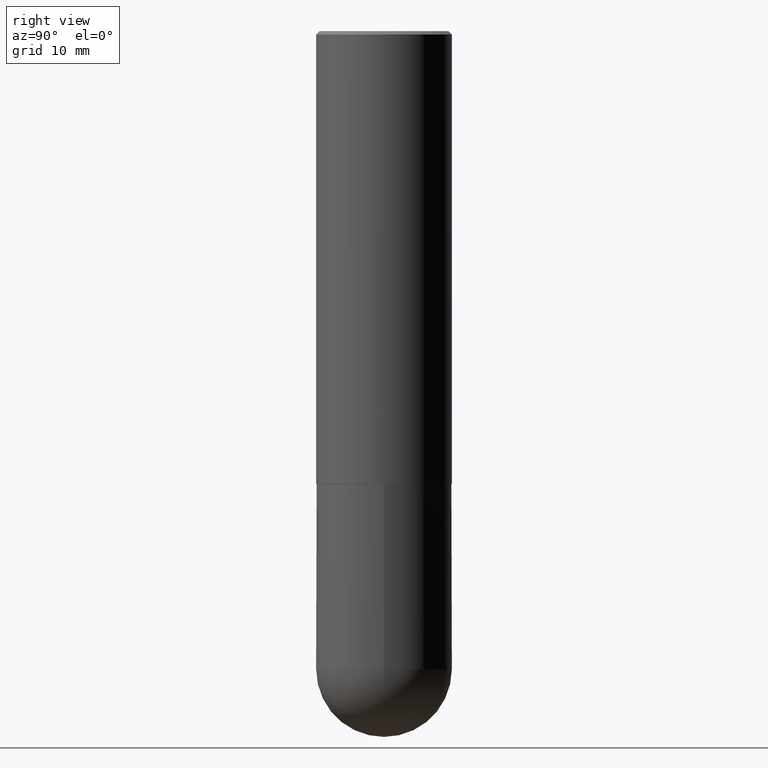
[diagram: clean part render]
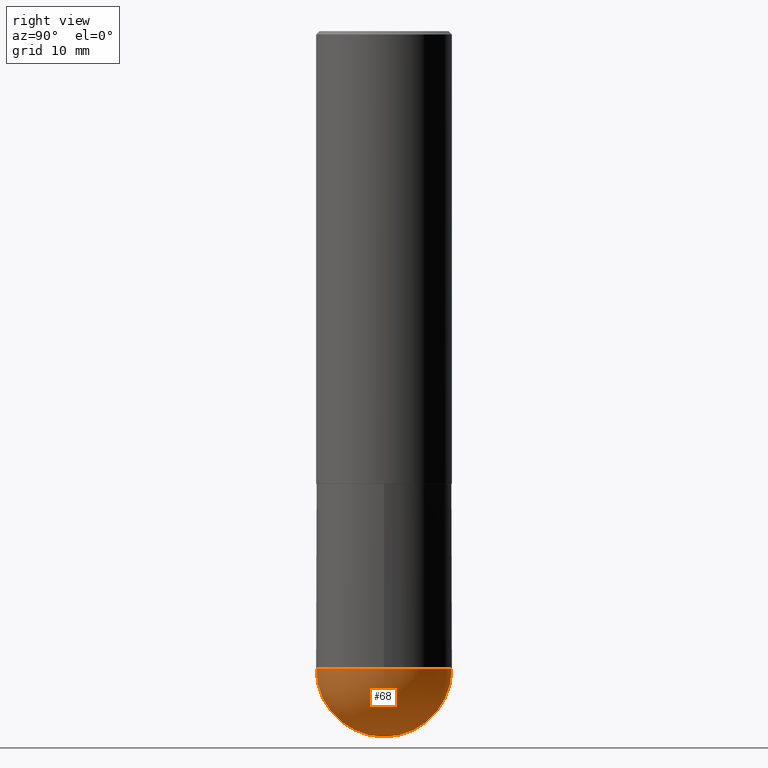
[diagram: same view with one face highlighted and labeled with its STEP entity id]
A machine part, right view. The second image highlights one B-rep face of the part: STEP entity #68.
In plain terms, the highlighted spherical surface has radius 10 mm.
Its self-contained STEP definition (entity closure, byte-faithful):
#4 = DIRECTION ( 'NONE',  ( -7.105427357600999492E-15, -1.000000000000000000, 0.000000000000000000 ) ) ;
#9 = CARTESIAN_POINT ( 'NONE',  ( 8.719071180016067419E-29, -1.339545650693076387E-14, -3.700800000000000090 ) ) ;
#21 = CARTESIAN_POINT ( 'NONE',  ( 9.050190957929953666E-29, -1.292127413879071357E-14, -3.700800000000000090 ) ) ;
#40 = CIRCLE ( 'NONE', #252, 0.3937000000000003830 ) ;
#46 = AXIS2_PLACEMENT_3D ( 'NONE', #21, #248, #246 ) ;
#67 = ORIENTED_EDGE ( 'NONE', *, *, #314, .F. ) ;
#68 = ADVANCED_FACE ( 'NONE', ( #307 ), #159, .T. ) ;
#74 = DIRECTION ( 'NONE',  ( -1.000000000000000000, 7.105427357601001070E-15, -4.926315508542082329E-29 ) ) ;
#75 = VERTEX_POINT ( 'NONE', #92 ) ;
#77 = AXIS2_PLACEMENT_3D ( 'NONE', #188, #251, #161 ) ;
#92 = CARTESIAN_POINT ( 'NONE',  ( 2.749192406205172752E-15, 0.3936999999999870048, -3.700800000000001866 ) ) ;
#112 = DIRECTION ( 'NONE',  ( 1.000000000000000000, -6.982962677686269866E-15, 0.000000000000000000 ) ) ;
#135 = DIRECTION ( 'NONE',  ( -2.445468806185136597E-29, 3.491481338843145583E-15, 1.000000000000000000 ) ) ;
#146 = AXIS2_PLACEMENT_3D ( 'NONE', #354, #135, #112 ) ;
#151 = CIRCLE ( 'NONE', #330, 0.3937000000000003830 ) ;
#155 = CARTESIAN_POINT ( 'NONE',  ( 9.698686197413653023E-29, -1.474594553779209640E-14, -4.094500000000000028 ) ) ;
#159 = SPHERICAL_SURFACE ( 'NONE', #77, 0.3937000000000003830 ) ;
#161 = DIRECTION ( 'NONE',  ( 6.982962677686265922E-15, 1.000000000000000000, -4.163344669033671690E-15 ) ) ;
#173 = EDGE_CURVE ( 'NONE', #372, #213, #323, .T. ) ;
#176 = ORIENTED_EDGE ( 'NONE', *, *, #272, .T. ) ;
#179 = ORIENTED_EDGE ( 'NONE', *, *, #385, .F. ) ;
#188 = CARTESIAN_POINT ( 'NONE',  ( 8.719071180016067419E-29, -1.339545650693076387E-14, -3.700800000000000090 ) ) ;
#206 = VERTEX_POINT ( 'NONE', #155 ) ;
#207 = EDGE_LOOP ( 'NONE', ( #179, #176, #67, #401 ) ) ;
#213 = VERTEX_POINT ( 'NONE', #225 ) ;
#225 = CARTESIAN_POINT ( 'NONE',  ( 0.3936999999999999389, -1.379414447350149376E-14, -3.700800000000000090 ) ) ;
#246 = DIRECTION ( 'NONE',  ( 1.000000000000000000, -6.982962677686269866E-15, 0.000000000000000000 ) ) ;
#248 = DIRECTION ( 'NONE',  ( -2.445468806185136597E-29, 3.491481338843145583E-15, 1.000000000000000000 ) ) ;
#251 = DIRECTION ( 'NONE',  ( -1.000000000000000000, 6.982962677686265922E-15, -4.883557194083112340E-29 ) ) ;
#252 = AXIS2_PLACEMENT_3D ( 'NONE', #286, #74, #4 ) ;
#264 = DIRECTION ( 'NONE',  ( 6.982962677686265133E-15, 1.000000000000000000, 0.000000000000000000 ) ) ;
#272 = EDGE_CURVE ( 'NONE', #206, #75, #151, .T. ) ;
#286 = CARTESIAN_POINT ( 'NONE',  ( 8.719071180016067419E-29, -1.339545650693076387E-14, -3.700800000000000090 ) ) ;
#291 = DIRECTION ( 'NONE',  ( 1.000000000000000000, -6.982962677686265922E-15, 4.883557194083112340E-29 ) ) ;
#293 = CARTESIAN_POINT ( 'NONE',  ( -2.797406750687425645E-15, -0.3937000000000133171, -3.700799999999998313 ) ) ;
#307 = FACE_OUTER_BOUND ( 'NONE', #207, .T. ) ;
#314 = EDGE_CURVE ( 'NONE', #213, #75, #366, .T. ) ;
#323 = CIRCLE ( 'NONE', #46, 0.3936999999999999389 ) ;
#330 = AXIS2_PLACEMENT_3D ( 'NONE', #9, #291, #264 ) ;
#354 = CARTESIAN_POINT ( 'NONE',  ( 9.050190957929953666E-29, -1.292127413879071357E-14, -3.700800000000000090 ) ) ;
#366 = CIRCLE ( 'NONE', #146, 0.3936999999999999389 ) ;
#372 = VERTEX_POINT ( 'NONE', #293 ) ;
#385 = EDGE_CURVE ( 'NONE', #206, #372, #40, .T. ) ;
#401 = ORIENTED_EDGE ( 'NONE', *, *, #173, .F. ) ;